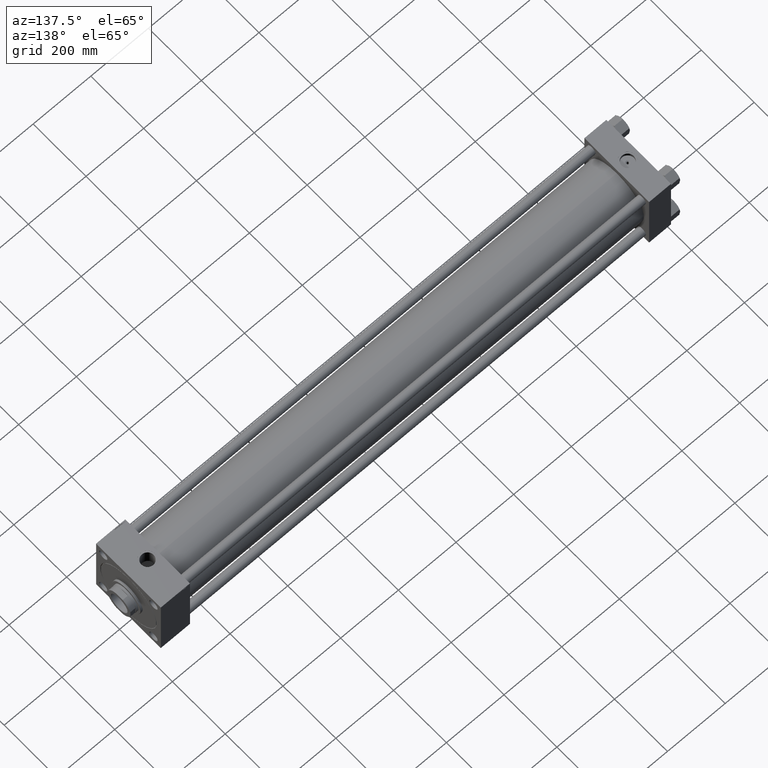
[diagram: clean part render]
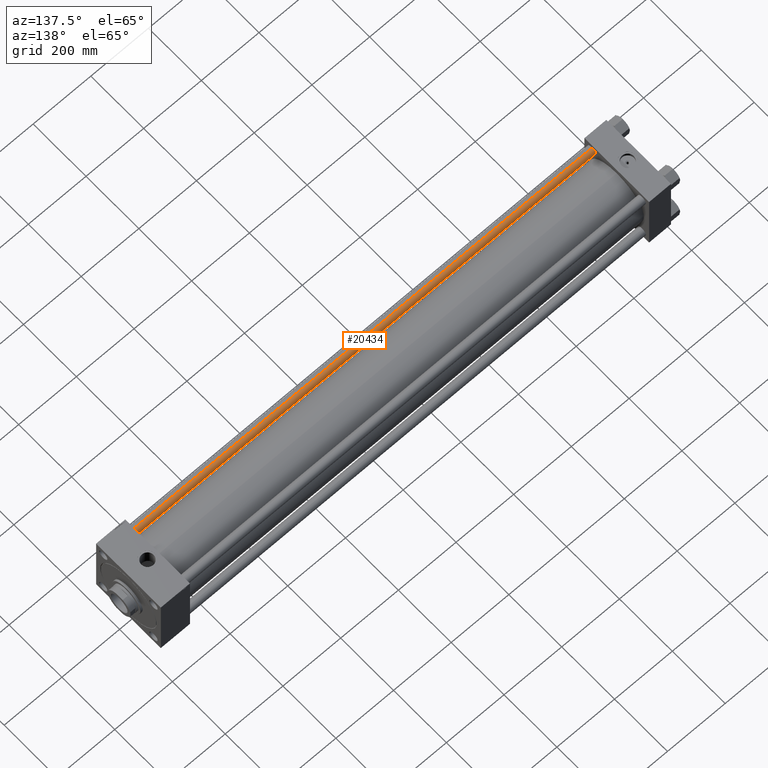
[diagram: same view with one face highlighted and labeled with its STEP entity id]
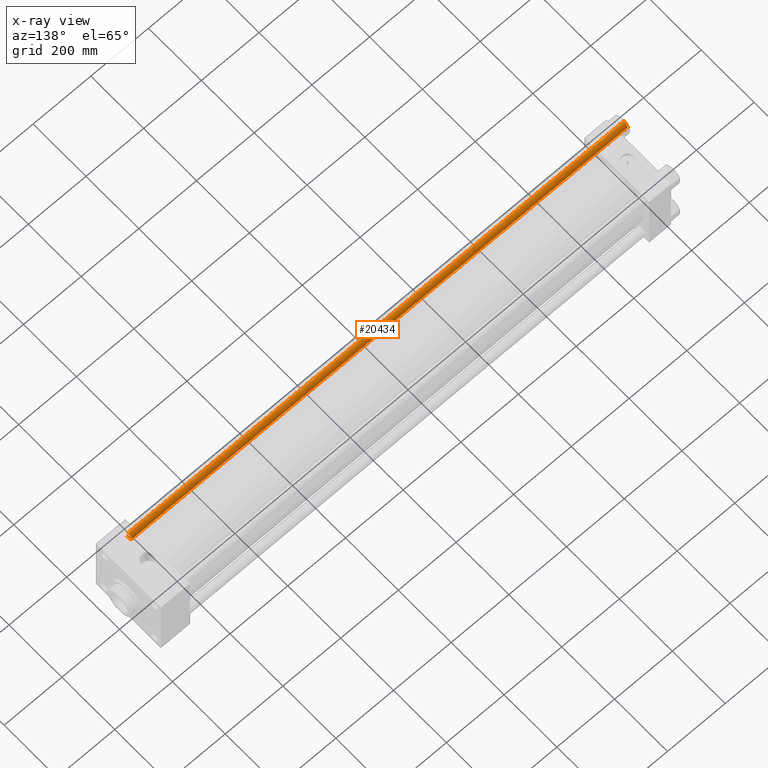
[diagram: x-ray of the same camera — body ghosted, the highlighted face saturated]
A machine part, auxiliary view. The second image highlights one B-rep face of the part: STEP entity #20434.
The next image is the same camera in x-ray: the body ghosted, the highlighted face saturated — about 0% of this face is hidden behind the body in this view.
In plain terms, the highlighted cylindrical surface (edge-blend (fillet) strip) has radius 15 mm, axis along (1, 0, -0).
Its self-contained STEP definition (entity closure, byte-faithful):
#3092 = LINE ( 'NONE', #30976, #15187 ) ;
#3584 = CARTESIAN_POINT ( 'NONE',  ( 0.000000000000000000, 0.000000000000000000, 1718.500000000000000 ) ) ;
#7725 = DIRECTION ( 'NONE',  ( -0.000000000000000000, -0.000000000000000000, -1.000000000000000000 ) ) ;
#10114 = AXIS2_PLACEMENT_3D ( 'NONE', #3584, #24808, #20572 ) ;
#15187 = VECTOR ( 'NONE', #47193, 1000.000000000000000 ) ;
#15321 = EDGE_CURVE ( 'NONE', #33948, #34915, #46203, .T. ) ;
#15686 = ORIENTED_EDGE ( 'NONE', *, *, #29338, .F. ) ;
#17149 = DIRECTION ( 'NONE',  ( 1.000000000000000000, 0.000000000000000000, 0.000000000000000000 ) ) ;
#17544 = CARTESIAN_POINT ( 'NONE',  ( -15.00000000000000000, 0.000000000000000000, 1719.000000000000000 ) ) ;
#20434 = ADVANCED_FACE ( 'NONE', ( #27911 ), #44118, .T. ) ;
#20572 = DIRECTION ( 'NONE',  ( 1.000000000000000000, 0.000000000000000000, 0.000000000000000000 ) ) ;
#20811 = VECTOR ( 'NONE', #33731, 1000.000000000000000 ) ;
#21118 = CIRCLE ( 'NONE', #10114, 15.00000000000000000 ) ;
#22840 = ORIENTED_EDGE ( 'NONE', *, *, #15321, .T. ) ;
#24808 = DIRECTION ( 'NONE',  ( 0.000000000000000000, 0.000000000000000000, -1.000000000000000000 ) ) ;
#25493 = LINE ( 'NONE', #17544, #20811 ) ;
#27401 = DIRECTION ( 'NONE',  ( -1.000000000000000000, 0.000000000000000000, 0.000000000000000000 ) ) ;
#27911 = FACE_OUTER_BOUND ( 'NONE', #40625, .T. ) ;
#28322 = ORIENTED_EDGE ( 'NONE', *, *, #33183, .T. ) ;
#28432 = CARTESIAN_POINT ( 'NONE',  ( 0.000000000000000000, 0.000000000000000000, 1719.000000000000000 ) ) ;
#29092 = CARTESIAN_POINT ( 'NONE',  ( 0.000000000000000000, 0.000000000000000000, 0.5000000000003890221 ) ) ;
#29338 = EDGE_CURVE ( 'NONE', #41333, #34915, #3092, .T. ) ;
#30962 = VERTEX_POINT ( 'NONE', #40773 ) ;
#30976 = CARTESIAN_POINT ( 'NONE',  ( 15.00000000000000000, 1.836970198721029589E-15, 1719.000000000000000 ) ) ;
#31822 = CARTESIAN_POINT ( 'NONE',  ( 15.00000000000000000, 1.836970198721029589E-15, 0.5000000000003890221 ) ) ;
#33183 = EDGE_CURVE ( 'NONE', #41333, #30962, #21118, .T. ) ;
#33731 = DIRECTION ( 'NONE',  ( -0.000000000000000000, -0.000000000000000000, -1.000000000000000000 ) ) ;
#33948 = VERTEX_POINT ( 'NONE', #43199 ) ;
#34915 = VERTEX_POINT ( 'NONE', #31822 ) ;
#35510 = ORIENTED_EDGE ( 'NONE', *, *, #52509, .T. ) ;
#36374 = CARTESIAN_POINT ( 'NONE',  ( 15.00000000000000000, 1.836970198721029589E-15, 1718.500000000000000 ) ) ;
#39487 = AXIS2_PLACEMENT_3D ( 'NONE', #28432, #7725, #27401 ) ;
#40625 = EDGE_LOOP ( 'NONE', ( #15686, #28322, #35510, #22840 ) ) ;
#40773 = CARTESIAN_POINT ( 'NONE',  ( -15.00000000000000000, 0.000000000000000000, 1718.500000000000000 ) ) ;
#41333 = VERTEX_POINT ( 'NONE', #36374 ) ;
#43199 = CARTESIAN_POINT ( 'NONE',  ( -15.00000000000000000, 0.000000000000000000, 0.5000000000003890221 ) ) ;
#44118 = CYLINDRICAL_SURFACE ( 'NONE', #39487, 15.00000000000000000 ) ;
#45301 = DIRECTION ( 'NONE',  ( -0.000000000000000000, -0.000000000000000000, 1.000000000000000000 ) ) ;
#45321 = AXIS2_PLACEMENT_3D ( 'NONE', #29092, #45301, #17149 ) ;
#46203 = CIRCLE ( 'NONE', #45321, 15.00000000000000000 ) ;
#47193 = DIRECTION ( 'NONE',  ( -0.000000000000000000, -0.000000000000000000, -1.000000000000000000 ) ) ;
#52509 = EDGE_CURVE ( 'NONE', #30962, #33948, #25493, .T. ) ;